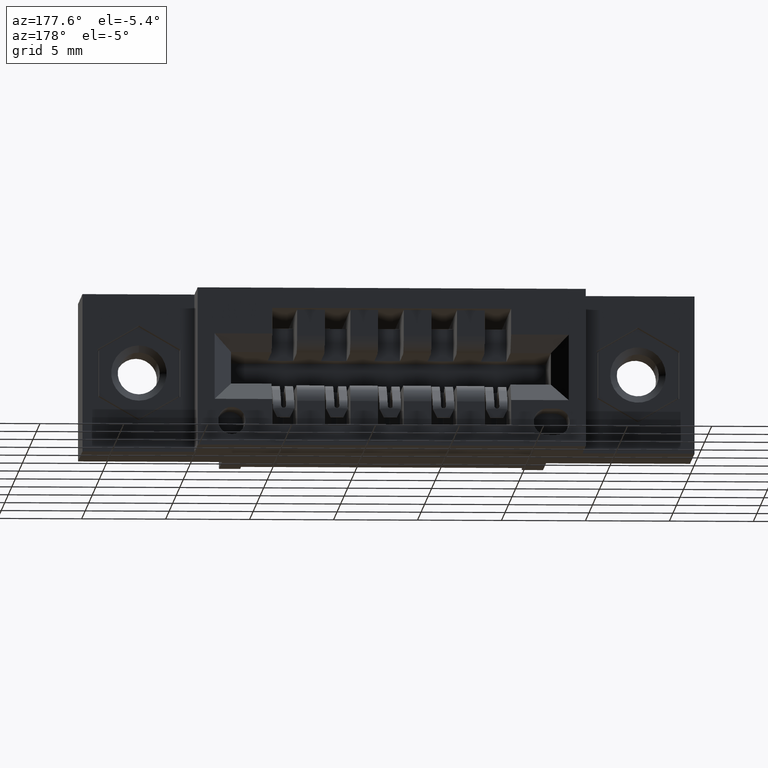
[diagram: clean part render]
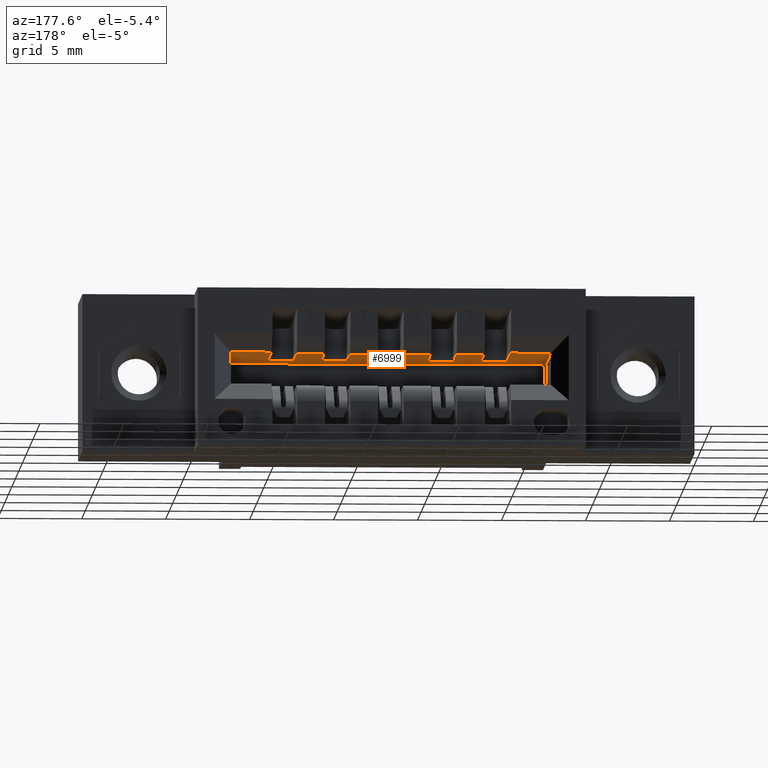
[diagram: same view with one face highlighted and labeled with its STEP entity id]
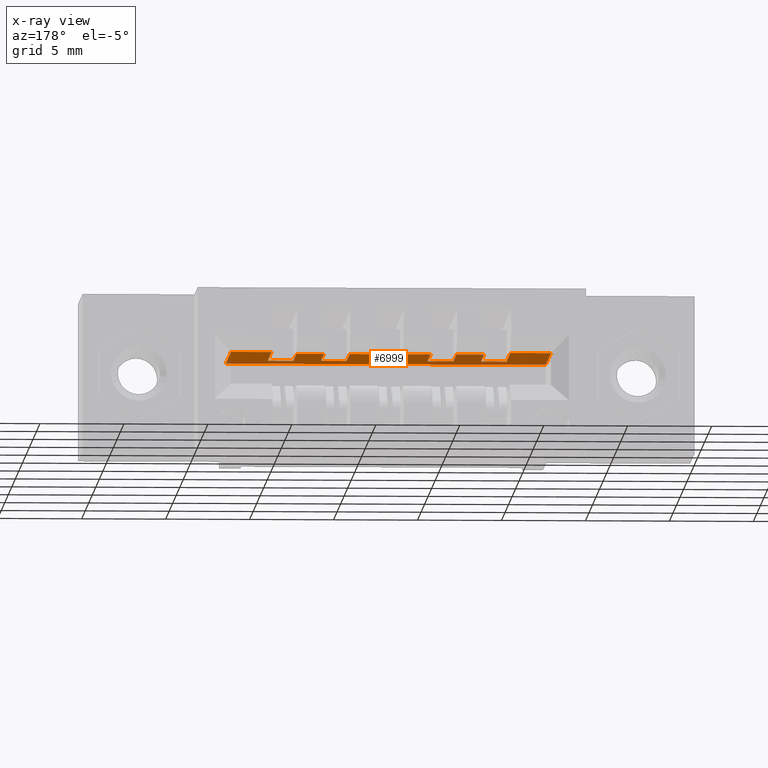
[diagram: x-ray of the same camera — body ghosted, the highlighted face saturated]
A machine part, auxiliary view. The second image highlights one B-rep face of the part: STEP entity #6999.
The next image is the same camera in x-ray: the body ghosted, the highlighted face saturated — about 1% of this face is hidden behind the body in this view.
In plain terms, the highlighted planar face has unit normal (0, 0, 1).
Its self-contained STEP definition (entity closure, byte-faithful):
#1 = CARTESIAN_POINT ( 'NONE',  ( 0.8125000000000000000, 0.5179999999999997939, -0.1480000000000000482 ) ) ;
#63 = VECTOR ( 'NONE', #9316, 39.37007874015748143 ) ;
#67 = VECTOR ( 'NONE', #7370, 39.37007874015748143 ) ;
#97 = CARTESIAN_POINT ( 'NONE',  ( 0.9974999999999999423, 0.3450000000000001399, -0.1479999999999999927 ) ) ;
#115 = VERTEX_POINT ( 'NONE', #8476 ) ;
#141 = LINE ( 'NONE', #1, #7775 ) ;
#152 = ORIENTED_EDGE ( 'NONE', *, *, #8559, .T. ) ;
#182 = CARTESIAN_POINT ( 'NONE',  ( 0.6224999999999999423, 0.3450000000000001399, -0.1480000000000000204 ) ) ;
#187 = DIRECTION ( 'NONE',  ( 0.0000000000000000000, 1.000000000000000000, 0.0000000000000000000 ) ) ;
#235 = CARTESIAN_POINT ( 'NONE',  ( 0.7475000000000000533, 0.5179999999999997939, -0.1480000000000000482 ) ) ;
#249 = CARTESIAN_POINT ( 'NONE',  ( 0.5625000000000000000, 0.5180000000000000160, -0.1480000000000000759 ) ) ;
#284 = CARTESIAN_POINT ( 'NONE',  ( 0.5625000000000000000, 0.3450000000000001399, -0.1480000000000000204 ) ) ;
#291 = EDGE_CURVE ( 'NONE', #8256, #5614, #141, .T. ) ;
#320 = DIRECTION ( 'NONE',  ( 0.0000000000000000000, 1.000000000000000000, 0.0000000000000000000 ) ) ;
#339 = EDGE_CURVE ( 'NONE', #5745, #3153, #8988, .T. ) ;
#343 = VECTOR ( 'NONE', #8880, 39.37007874015748143 ) ;
#373 = EDGE_CURVE ( 'NONE', #6611, #8250, #5625, .T. ) ;
#376 = VERTEX_POINT ( 'NONE', #5487 ) ;
#434 = LINE ( 'NONE', #6974, #3679 ) ;
#515 = CARTESIAN_POINT ( 'NONE',  ( 0.6224999999999999423, 0.5179999999999997939, -0.1480000000000000482 ) ) ;
#528 = VECTOR ( 'NONE', #7751, 39.37007874015748143 ) ;
#539 = VECTOR ( 'NONE', #6299, 39.37007874015748143 ) ;
#547 = VERTEX_POINT ( 'NONE', #4386 ) ;
#594 = CARTESIAN_POINT ( 'NONE',  ( 0.6874999999999998890, 0.3450000000000001399, -0.1480000000000000204 ) ) ;
#671 = DIRECTION ( 'NONE',  ( 0.0000000000000000000, 1.000000000000000000, 0.0000000000000000000 ) ) ;
#723 = CARTESIAN_POINT ( 'NONE',  ( 0.4974999999999999978, 0.5179999999999997939, -0.1480000000000000759 ) ) ;
#852 = PLANE ( 'NONE',  #6221 ) ;
#883 = ORIENTED_EDGE ( 'NONE', *, *, #2269, .F. ) ;
#1014 = CARTESIAN_POINT ( 'NONE',  ( 0.9375000000000000000, 0.5179999999999997939, -0.1480000000000000204 ) ) ;
#1034 = EDGE_CURVE ( 'NONE', #376, #8256, #5711, .T. ) ;
#1038 = CARTESIAN_POINT ( 'NONE',  ( 0.3425000000000000266, 0.5600000000000002753, -0.1480000000000000759 ) ) ;
#1165 = VERTEX_POINT ( 'NONE', #5276 ) ;
#1168 = EDGE_CURVE ( 'NONE', #1250, #5745, #2231, .T. ) ;
#1250 = VERTEX_POINT ( 'NONE', #5227 ) ;
#1341 = CARTESIAN_POINT ( 'NONE',  ( 0.8124999999999998890, 0.2699999999999999067, -0.1480000000000000759 ) ) ;
#1356 = VERTEX_POINT ( 'NONE', #3317 ) ;
#1411 = VECTOR ( 'NONE', #3353, 39.37007874015748143 ) ;
#1464 = EDGE_CURVE ( 'NONE', #5852, #4477, #7907, .T. ) ;
#1552 = EDGE_CURVE ( 'NONE', #1250, #6419, #8005, .T. ) ;
#1590 = EDGE_CURVE ( 'NONE', #115, #3654, #5125, .T. ) ;
#1613 = DIRECTION ( 'NONE',  ( 1.000000000000000000, 0.0000000000000000000, 0.0000000000000000000 ) ) ;
#1638 = ORIENTED_EDGE ( 'NONE', *, *, #4560, .T. ) ;
#1669 = CARTESIAN_POINT ( 'NONE',  ( 0.7474999999999998312, 0.3450000000000001399, -0.1480000000000000204 ) ) ;
#1765 = LINE ( 'NONE', #1014, #67 ) ;
#1891 = EDGE_CURVE ( 'NONE', #5775, #5688, #9219, .T. ) ;
#1955 = ORIENTED_EDGE ( 'NONE', *, *, #7614, .T. ) ;
#1962 = DIRECTION ( 'NONE',  ( -0.0000000000000000000, 1.000000000000000000, -0.0000000000000000000 ) ) ;
#1964 = CARTESIAN_POINT ( 'NONE',  ( 0.5625000000000000000, 0.5179999999999997939, -0.1480000000000000759 ) ) ;
#2049 = ORIENTED_EDGE ( 'NONE', *, *, #3583, .T. ) ;
#2071 = CARTESIAN_POINT ( 'NONE',  ( 0.5625000000000000000, 0.3450000000000001399, -0.1480000000000000204 ) ) ;
#2227 = LINE ( 'NONE', #2798, #3195 ) ;
#2231 = LINE ( 'NONE', #5134, #5658 ) ;
#2232 = VERTEX_POINT ( 'NONE', #9260 ) ;
#2239 = CARTESIAN_POINT ( 'NONE',  ( 0.8124999999999998890, 0.3450000000000001399, -0.1479999999999999927 ) ) ;
#2247 = CARTESIAN_POINT ( 'NONE',  ( 1.092500000000000471, 0.5600000000000002753, -0.1480000000000000759 ) ) ;
#2269 = EDGE_CURVE ( 'NONE', #5775, #6611, #9122, .T. ) ;
#2323 = VECTOR ( 'NONE', #187, 39.37007874015748143 ) ;
#2328 = VECTOR ( 'NONE', #5946, 39.37007874015748143 ) ;
#2331 = VECTOR ( 'NONE', #8419, 39.37007874015748143 ) ;
#2453 = CARTESIAN_POINT ( 'NONE',  ( 0.8724999999999999423, 0.3450000000000001399, -0.1479999999999999927 ) ) ;
#2473 = CARTESIAN_POINT ( 'NONE',  ( 0.4375000000000000555, 0.3450000000000001399, -0.1480000000000000204 ) ) ;
#2631 = ORIENTED_EDGE ( 'NONE', *, *, #3531, .F. ) ;
#2798 = CARTESIAN_POINT ( 'NONE',  ( 0.6875000000000000000, 0.5179999999999997939, -0.1480000000000000482 ) ) ;
#2880 = EDGE_CURVE ( 'NONE', #1356, #4433, #6075, .T. ) ;
#2886 = EDGE_CURVE ( 'NONE', #1165, #9321, #434, .T. ) ;
#2895 = DIRECTION ( 'NONE',  ( 0.0000000000000000000, 1.000000000000000000, 0.0000000000000000000 ) ) ;
#2917 = ORIENTED_EDGE ( 'NONE', *, *, #9023, .T. ) ;
#2980 = CARTESIAN_POINT ( 'NONE',  ( 0.3425000000000000266, 0.2699999999999999067, -0.1480000000000000759 ) ) ;
#3021 = DIRECTION ( 'NONE',  ( -1.000000000000000000, -0.0000000000000000000, -0.0000000000000000000 ) ) ;
#3022 = CARTESIAN_POINT ( 'NONE',  ( 0.9374999999999998890, 0.2699999999999999067, -0.1480000000000000759 ) ) ;
#3044 = VECTOR ( 'NONE', #1613, 39.37007874015748143 ) ;
#3066 = CARTESIAN_POINT ( 'NONE',  ( 0.6875000000000000000, 0.5179999999999997939, -0.1480000000000000482 ) ) ;
#3069 = CARTESIAN_POINT ( 'NONE',  ( 0.3425000000000000266, 0.2699999999999999067, -0.1480000000000000759 ) ) ;
#3153 = VERTEX_POINT ( 'NONE', #8752 ) ;
#3195 = VECTOR ( 'NONE', #8536, 39.37007874015748143 ) ;
#3237 = VECTOR ( 'NONE', #5303, 39.37007874015748143 ) ;
#3317 = CARTESIAN_POINT ( 'NONE',  ( 0.6874999999999998890, 0.3450000000000001399, -0.1480000000000000204 ) ) ;
#3353 = DIRECTION ( 'NONE',  ( 0.0000000000000000000, 1.000000000000000000, 0.0000000000000000000 ) ) ;
#3394 = LINE ( 'NONE', #5491, #3806 ) ;
#3486 = VECTOR ( 'NONE', #7793, 39.37007874015748143 ) ;
#3531 = EDGE_CURVE ( 'NONE', #6419, #4477, #1765, .T. ) ;
#3554 = DIRECTION ( 'NONE',  ( -0.0000000000000000000, 1.000000000000000000, -0.0000000000000000000 ) ) ;
#3576 = VERTEX_POINT ( 'NONE', #1669 ) ;
#3583 = EDGE_CURVE ( 'NONE', #1165, #2232, #7458, .T. ) ;
#3654 = VERTEX_POINT ( 'NONE', #4664 ) ;
#3679 = VECTOR ( 'NONE', #5455, 39.37007874015748143 ) ;
#3698 = VECTOR ( 'NONE', #3743, 39.37007874015748143 ) ;
#3743 = DIRECTION ( 'NONE',  ( 0.0000000000000000000, 1.000000000000000000, 0.0000000000000000000 ) ) ;
#3745 = LINE ( 'NONE', #8108, #3044 ) ;
#3776 = ORIENTED_EDGE ( 'NONE', *, *, #8387, .T. ) ;
#3806 = VECTOR ( 'NONE', #8421, 39.37007874015748143 ) ;
#3808 = EDGE_CURVE ( 'NONE', #3654, #8653, #4890, .T. ) ;
#3983 = EDGE_CURVE ( 'NONE', #5688, #8594, #4507, .T. ) ;
#4088 = ORIENTED_EDGE ( 'NONE', *, *, #3808, .F. ) ;
#4120 = VECTOR ( 'NONE', #1962, 39.37007874015748143 ) ;
#4150 = LINE ( 'NONE', #1038, #539 ) ;
#4175 = ORIENTED_EDGE ( 'NONE', *, *, #2886, .F. ) ;
#4183 = CARTESIAN_POINT ( 'NONE',  ( 0.8724999999999999423, 0.2699999999999999067, -0.1480000000000000759 ) ) ;
#4185 = CARTESIAN_POINT ( 'NONE',  ( 1.092500000000000471, 0.2699999999999999067, -0.1480000000000000759 ) ) ;
#4244 = ORIENTED_EDGE ( 'NONE', *, *, #291, .F. ) ;
#4386 = CARTESIAN_POINT ( 'NONE',  ( 0.3425000000000000266, 0.5600000000000002753, -0.1480000000000000759 ) ) ;
#4433 = VERTEX_POINT ( 'NONE', #3066 ) ;
#4473 = ORIENTED_EDGE ( 'NONE', *, *, #9166, .T. ) ;
#4477 = VERTEX_POINT ( 'NONE', #8454 ) ;
#4507 = LINE ( 'NONE', #6649, #3698 ) ;
#4527 = LINE ( 'NONE', #6811, #343 ) ;
#4560 = EDGE_CURVE ( 'NONE', #3153, #8653, #4150, .T. ) ;
#4664 = CARTESIAN_POINT ( 'NONE',  ( 1.092500000000000471, 0.2699999999999999067, -0.1480000000000000759 ) ) ;
#4890 = LINE ( 'NONE', #4185, #7482 ) ;
#5125 = LINE ( 'NONE', #2980, #3237 ) ;
#5134 = CARTESIAN_POINT ( 'NONE',  ( 0.9374999999999998890, 0.3450000000000001399, -0.1479999999999999927 ) ) ;
#5148 = ORIENTED_EDGE ( 'NONE', *, *, #1168, .T. ) ;
#5227 = CARTESIAN_POINT ( 'NONE',  ( 0.9374999999999998890, 0.3450000000000001399, -0.1479999999999999927 ) ) ;
#5276 = CARTESIAN_POINT ( 'NONE',  ( 0.4375000000000000555, 0.3450000000000001399, -0.1480000000000000204 ) ) ;
#5303 = DIRECTION ( 'NONE',  ( 1.000000000000000000, 0.0000000000000000000, 0.0000000000000000000 ) ) ;
#5455 = DIRECTION ( 'NONE',  ( 0.0000000000000000000, 1.000000000000000000, 0.0000000000000000000 ) ) ;
#5487 = CARTESIAN_POINT ( 'NONE',  ( 0.8124999999999998890, 0.3450000000000001399, -0.1479999999999999927 ) ) ;
#5491 = CARTESIAN_POINT ( 'NONE',  ( 0.7474999999999998312, 0.2699999999999999067, -0.1480000000000000759 ) ) ;
#5538 = CARTESIAN_POINT ( 'NONE',  ( 0.5625000000000000000, 0.2699999999999999067, -0.1480000000000000759 ) ) ;
#5554 = VECTOR ( 'NONE', #2895, 39.37007874015748143 ) ;
#5572 = ORIENTED_EDGE ( 'NONE', *, *, #3983, .T. ) ;
#5580 = LINE ( 'NONE', #8456, #4120 ) ;
#5614 = VERTEX_POINT ( 'NONE', #235 ) ;
#5625 = LINE ( 'NONE', #1964, #528 ) ;
#5658 = VECTOR ( 'NONE', #8015, 39.37007874015748143 ) ;
#5688 = VERTEX_POINT ( 'NONE', #182 ) ;
#5711 = LINE ( 'NONE', #1341, #5554 ) ;
#5745 = VERTEX_POINT ( 'NONE', #97 ) ;
#5775 = VERTEX_POINT ( 'NONE', #284 ) ;
#5852 = VERTEX_POINT ( 'NONE', #2453 ) ;
#5901 = ORIENTED_EDGE ( 'NONE', *, *, #2880, .F. ) ;
#5946 = DIRECTION ( 'NONE',  ( 1.000000000000000000, -0.0000000000000000000, -0.0000000000000000000 ) ) ;
#5981 = FACE_OUTER_BOUND ( 'NONE', #8831, .T. ) ;
#6027 = DIRECTION ( 'NONE',  ( 1.000000000000000000, 0.0000000000000000000, 0.0000000000000000000 ) ) ;
#6065 = ORIENTED_EDGE ( 'NONE', *, *, #9131, .T. ) ;
#6075 = LINE ( 'NONE', #7628, #1411 ) ;
#6121 = VECTOR ( 'NONE', #671, 39.37007874015748143 ) ;
#6221 = AXIS2_PLACEMENT_3D ( 'NONE', #3069, #8097, #6027 ) ;
#6299 = DIRECTION ( 'NONE',  ( 1.000000000000000000, 0.0000000000000000000, 0.0000000000000000000 ) ) ;
#6355 = ORIENTED_EDGE ( 'NONE', *, *, #339, .T. ) ;
#6402 = ORIENTED_EDGE ( 'NONE', *, *, #8326, .F. ) ;
#6419 = VERTEX_POINT ( 'NONE', #8502 ) ;
#6468 = CARTESIAN_POINT ( 'NONE',  ( 0.8125000000000000000, 0.5179999999999997939, -0.1480000000000000482 ) ) ;
#6611 = VERTEX_POINT ( 'NONE', #249 ) ;
#6624 = DIRECTION ( 'NONE',  ( 1.000000000000000000, -0.0000000000000000000, -0.0000000000000000000 ) ) ;
#6649 = CARTESIAN_POINT ( 'NONE',  ( 0.6224999999999999423, 0.2699999999999999067, -0.1480000000000000759 ) ) ;
#6679 = ORIENTED_EDGE ( 'NONE', *, *, #1552, .F. ) ;
#6690 = CARTESIAN_POINT ( 'NONE',  ( 0.9974999999999999423, 0.2699999999999999067, -0.1480000000000000759 ) ) ;
#6801 = ORIENTED_EDGE ( 'NONE', *, *, #373, .F. ) ;
#6811 = CARTESIAN_POINT ( 'NONE',  ( 0.4974999999999999978, 0.2699999999999999067, -0.1480000000000000759 ) ) ;
#6937 = ORIENTED_EDGE ( 'NONE', *, *, #1034, .F. ) ;
#6974 = CARTESIAN_POINT ( 'NONE',  ( 0.4375000000000000555, 0.2699999999999999067, -0.1480000000000000759 ) ) ;
#6999 = ADVANCED_FACE ( 'NONE', ( #5981 ), #852, .F. ) ;
#7243 = ORIENTED_EDGE ( 'NONE', *, *, #1464, .T. ) ;
#7370 = DIRECTION ( 'NONE',  ( -1.000000000000000000, -0.0000000000000000000, -0.0000000000000000000 ) ) ;
#7458 = LINE ( 'NONE', #2473, #2328 ) ;
#7482 = VECTOR ( 'NONE', #3554, 39.37007874015748143 ) ;
#7614 = EDGE_CURVE ( 'NONE', #1356, #3576, #9205, .T. ) ;
#7628 = CARTESIAN_POINT ( 'NONE',  ( 0.6874999999999998890, 0.2699999999999999067, -0.1480000000000000759 ) ) ;
#7750 = VECTOR ( 'NONE', #6624, 39.37007874015748143 ) ;
#7751 = DIRECTION ( 'NONE',  ( -1.000000000000000000, -0.0000000000000000000, -0.0000000000000000000 ) ) ;
#7775 = VECTOR ( 'NONE', #3021, 39.37007874015748143 ) ;
#7793 = DIRECTION ( 'NONE',  ( 1.000000000000000000, -0.0000000000000000000, -0.0000000000000000000 ) ) ;
#7847 = ORIENTED_EDGE ( 'NONE', *, *, #1590, .F. ) ;
#7907 = LINE ( 'NONE', #4183, #6121 ) ;
#8005 = LINE ( 'NONE', #3022, #2323 ) ;
#8015 = DIRECTION ( 'NONE',  ( 1.000000000000000000, -0.0000000000000000000, -0.0000000000000000000 ) ) ;
#8097 = DIRECTION ( 'NONE',  ( -0.0000000000000000000, 0.0000000000000000000, 1.000000000000000000 ) ) ;
#8108 = CARTESIAN_POINT ( 'NONE',  ( 0.3425000000000000266, 0.5600000000000002753, -0.1480000000000000759 ) ) ;
#8250 = VERTEX_POINT ( 'NONE', #723 ) ;
#8256 = VERTEX_POINT ( 'NONE', #6468 ) ;
#8326 = EDGE_CURVE ( 'NONE', #4433, #8594, #2227, .T. ) ;
#8379 = VECTOR ( 'NONE', #320, 39.37007874015748143 ) ;
#8387 = EDGE_CURVE ( 'NONE', #547, #9321, #3745, .T. ) ;
#8402 = CARTESIAN_POINT ( 'NONE',  ( 0.4375000000000000555, 0.5600000000000002753, -0.1480000000000000759 ) ) ;
#8419 = DIRECTION ( 'NONE',  ( 0.0000000000000000000, 1.000000000000000000, 0.0000000000000000000 ) ) ;
#8421 = DIRECTION ( 'NONE',  ( 0.0000000000000000000, 1.000000000000000000, 0.0000000000000000000 ) ) ;
#8454 = CARTESIAN_POINT ( 'NONE',  ( 0.8725000000000000533, 0.5179999999999997939, -0.1480000000000000204 ) ) ;
#8456 = CARTESIAN_POINT ( 'NONE',  ( 0.3425000000000000266, 0.2699999999999999067, -0.1480000000000000759 ) ) ;
#8476 = CARTESIAN_POINT ( 'NONE',  ( 0.3425000000000000266, 0.2699999999999999067, -0.1480000000000000759 ) ) ;
#8502 = CARTESIAN_POINT ( 'NONE',  ( 0.9375000000000000000, 0.5179999999999997939, -0.1480000000000000204 ) ) ;
#8536 = DIRECTION ( 'NONE',  ( -1.000000000000000000, -0.0000000000000000000, -0.0000000000000000000 ) ) ;
#8559 = EDGE_CURVE ( 'NONE', #3576, #5614, #3394, .T. ) ;
#8580 = ORIENTED_EDGE ( 'NONE', *, *, #1891, .T. ) ;
#8594 = VERTEX_POINT ( 'NONE', #515 ) ;
#8653 = VERTEX_POINT ( 'NONE', #2247 ) ;
#8739 = LINE ( 'NONE', #2239, #7750 ) ;
#8752 = CARTESIAN_POINT ( 'NONE',  ( 0.9974999999999999423, 0.5600000000000002753, -0.1480000000000000759 ) ) ;
#8831 = EDGE_LOOP ( 'NONE', ( #2917, #3776, #4175, #2049, #4473, #6801, #883, #8580, #5572, #6402, #5901, #1955, #152, #4244, #6937, #6065, #7243, #2631, #6679, #5148, #6355, #1638, #4088, #7847 ) ) ;
#8880 = DIRECTION ( 'NONE',  ( 0.0000000000000000000, 1.000000000000000000, 0.0000000000000000000 ) ) ;
#8988 = LINE ( 'NONE', #6690, #8379 ) ;
#9023 = EDGE_CURVE ( 'NONE', #115, #547, #5580, .T. ) ;
#9122 = LINE ( 'NONE', #5538, #2331 ) ;
#9131 = EDGE_CURVE ( 'NONE', #376, #5852, #8739, .T. ) ;
#9166 = EDGE_CURVE ( 'NONE', #2232, #8250, #4527, .T. ) ;
#9205 = LINE ( 'NONE', #594, #3486 ) ;
#9219 = LINE ( 'NONE', #2071, #63 ) ;
#9260 = CARTESIAN_POINT ( 'NONE',  ( 0.4974999999999999978, 0.3450000000000001399, -0.1480000000000000204 ) ) ;
#9316 = DIRECTION ( 'NONE',  ( 1.000000000000000000, -0.0000000000000000000, -0.0000000000000000000 ) ) ;
#9321 = VERTEX_POINT ( 'NONE', #8402 ) ;